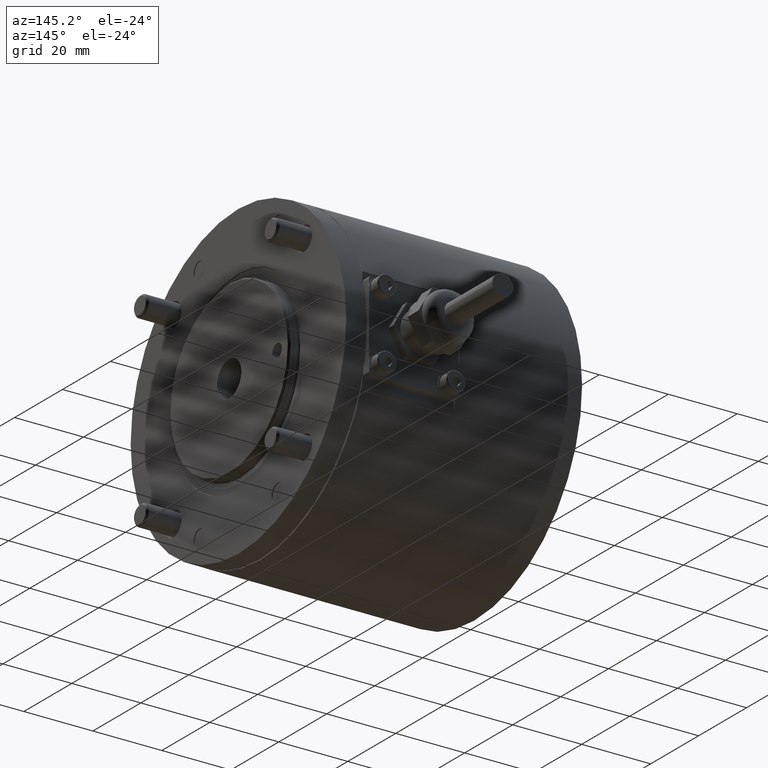
[diagram: clean part render]
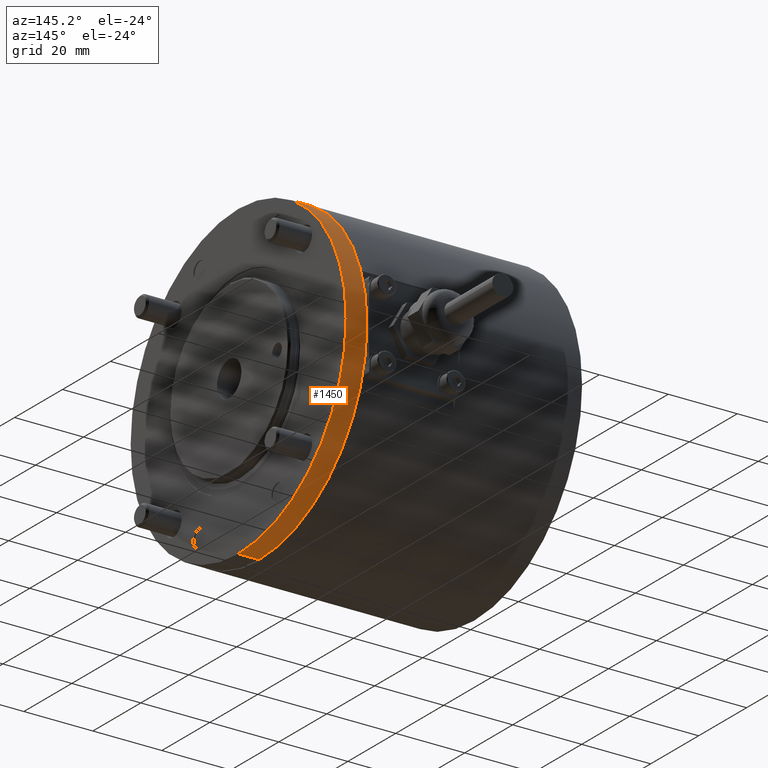
[diagram: same view with one face highlighted and labeled with its STEP entity id]
A machine part, auxiliary view. The second image highlights one B-rep face of the part: STEP entity #1450.
In plain terms, the highlighted cylindrical surface (partial cylindrical patch) has radius 44.95 mm, axis along (1, -0, -0).
Its self-contained STEP definition (entity closure, byte-faithful):
#52 = AXIS2_PLACEMENT_3D ( 'NONE', #2325, #325, #7310 ) ;
#102 = LINE ( 'NONE', #4742, #9953 ) ;
#258 = VERTEX_POINT ( 'NONE', #9357 ) ;
#325 = DIRECTION ( 'NONE',  ( 0.000000000000000000, 1.000000000000000000, 0.000000000000000000 ) ) ;
#877 = VERTEX_POINT ( 'NONE', #1515 ) ;
#892 = FACE_OUTER_BOUND ( 'NONE', #8986, .T. ) ;
#1119 = ORIENTED_EDGE ( 'NONE', *, *, #4374, .T. ) ;
#1209 = CYLINDRICAL_SURFACE ( 'NONE', #2533, 44.95000000000000284 ) ;
#1240 = EDGE_CURVE ( 'NONE', #877, #3794, #6544, .T. ) ;
#1246 = CARTESIAN_POINT ( 'NONE',  ( 0.000000000000000000, 0.000000000000000000, -44.95000000000000284 ) ) ;
#1310 = ORIENTED_EDGE ( 'NONE', *, *, #8832, .F. ) ;
#1450 = ADVANCED_FACE ( 'NONE', ( #892 ), #1209, .T. ) ;
#1515 = CARTESIAN_POINT ( 'NONE',  ( 0.000000000000000000, 6.000000000000000000, -44.95000000000000284 ) ) ;
#2079 = ORIENTED_EDGE ( 'NONE', *, *, #1240, .F. ) ;
#2325 = CARTESIAN_POINT ( 'NONE',  ( 0.000000000000000000, 0.000000000000000000, 0.000000000000000000 ) ) ;
#2533 = AXIS2_PLACEMENT_3D ( 'NONE', #8587, #9499, #12768 ) ;
#3794 = VERTEX_POINT ( 'NONE', #1246 ) ;
#4329 = DIRECTION ( 'NONE',  ( 0.000000000000000000, 0.000000000000000000, 1.000000000000000000 ) ) ;
#4338 = CIRCLE ( 'NONE', #12007, 44.95000000000000284 ) ;
#4374 = EDGE_CURVE ( 'NONE', #258, #3794, #10843, .T. ) ;
#4542 = DIRECTION ( 'NONE',  ( -0.000000000000000000, -1.000000000000000000, -0.000000000000000000 ) ) ;
#4742 = CARTESIAN_POINT ( 'NONE',  ( 5.504787362167353271E-15, 6.000000000000000000, 44.95000000000000284 ) ) ;
#5541 = CARTESIAN_POINT ( 'NONE',  ( 0.000000000000000000, 6.000000000000000000, 0.000000000000000000 ) ) ;
#6544 = LINE ( 'NONE', #12601, #7159 ) ;
#7068 = VERTEX_POINT ( 'NONE', #12473 ) ;
#7159 = VECTOR ( 'NONE', #4542, 1000.000000000000000 ) ;
#7310 = DIRECTION ( 'NONE',  ( 0.000000000000000000, 0.000000000000000000, 1.000000000000000000 ) ) ;
#7460 = DIRECTION ( 'NONE',  ( 0.000000000000000000, 1.000000000000000000, 0.000000000000000000 ) ) ;
#7817 = ORIENTED_EDGE ( 'NONE', *, *, #10419, .T. ) ;
#8587 = CARTESIAN_POINT ( 'NONE',  ( 0.000000000000000000, 6.000000000000000000, 0.000000000000000000 ) ) ;
#8832 = EDGE_CURVE ( 'NONE', #7068, #877, #4338, .T. ) ;
#8986 = EDGE_LOOP ( 'NONE', ( #1310, #7817, #1119, #2079 ) ) ;
#9357 = CARTESIAN_POINT ( 'NONE',  ( 5.504787362167353271E-15, 0.000000000000000000, 44.95000000000000284 ) ) ;
#9499 = DIRECTION ( 'NONE',  ( -0.000000000000000000, -1.000000000000000000, -0.000000000000000000 ) ) ;
#9953 = VECTOR ( 'NONE', #12800, 1000.000000000000000 ) ;
#10419 = EDGE_CURVE ( 'NONE', #7068, #258, #102, .T. ) ;
#10843 = CIRCLE ( 'NONE', #52, 44.95000000000000284 ) ;
#12007 = AXIS2_PLACEMENT_3D ( 'NONE', #5541, #7460, #4329 ) ;
#12473 = CARTESIAN_POINT ( 'NONE',  ( 5.504787362167353271E-15, 6.000000000000000000, 44.95000000000000284 ) ) ;
#12601 = CARTESIAN_POINT ( 'NONE',  ( 0.000000000000000000, 6.000000000000000000, -44.95000000000000284 ) ) ;
#12768 = DIRECTION ( 'NONE',  ( 0.000000000000000000, 0.000000000000000000, -1.000000000000000000 ) ) ;
#12800 = DIRECTION ( 'NONE',  ( -0.000000000000000000, -1.000000000000000000, -0.000000000000000000 ) ) ;